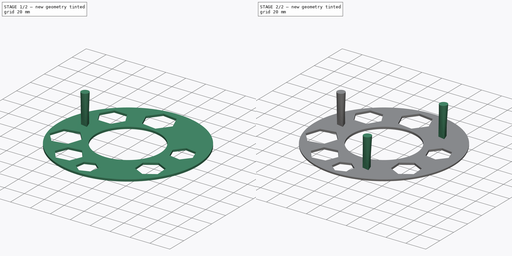
[diagram: build sequence overview — one tinted view per stage of 2, left to right]
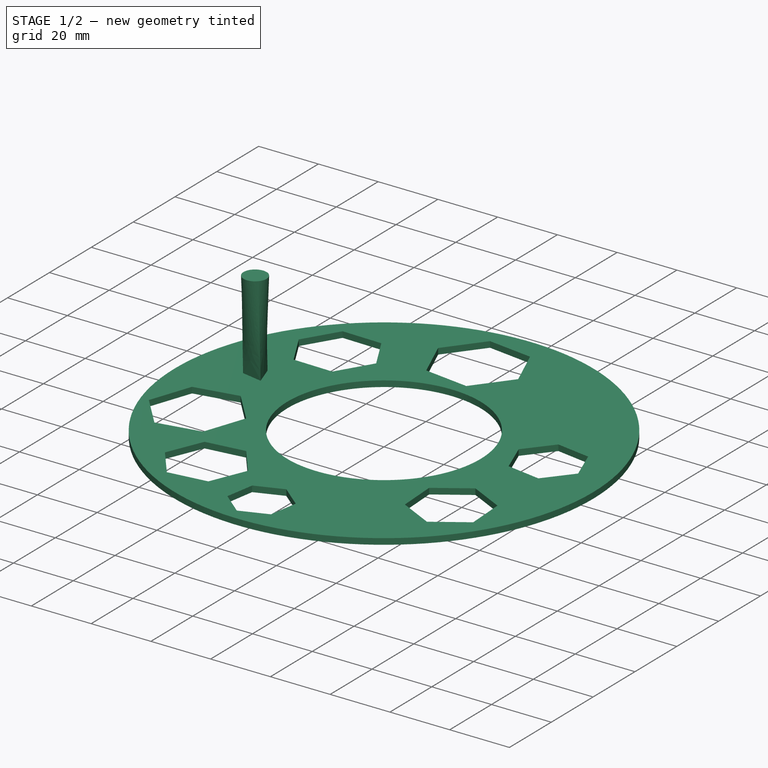
[diagram: stage 1 of 2 — iso view after this stage's code; geometry added in this stage tinted green]
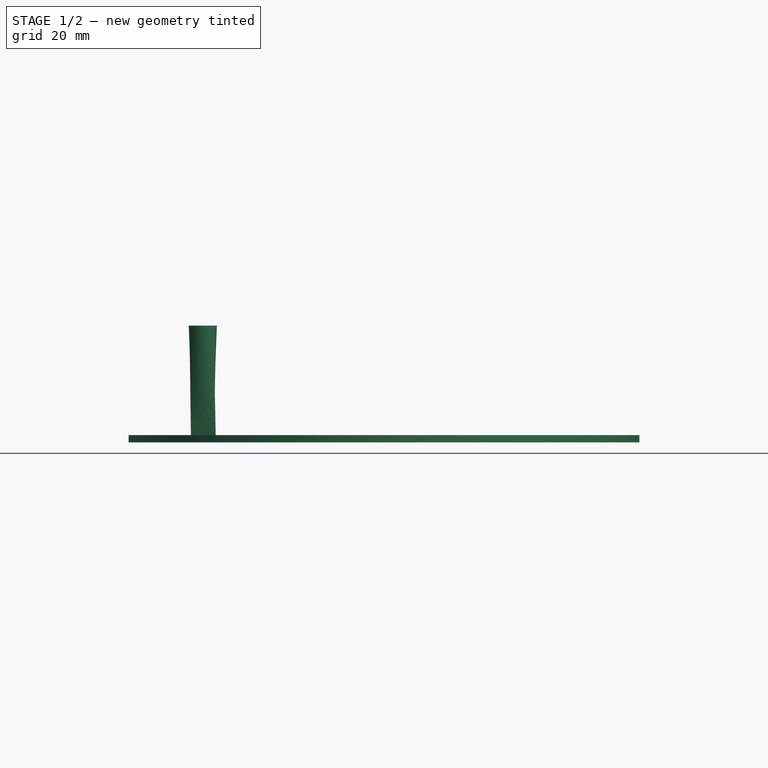
[diagram: stage 1 of 2 — front view after this stage's code; geometry added in this stage tinted green]
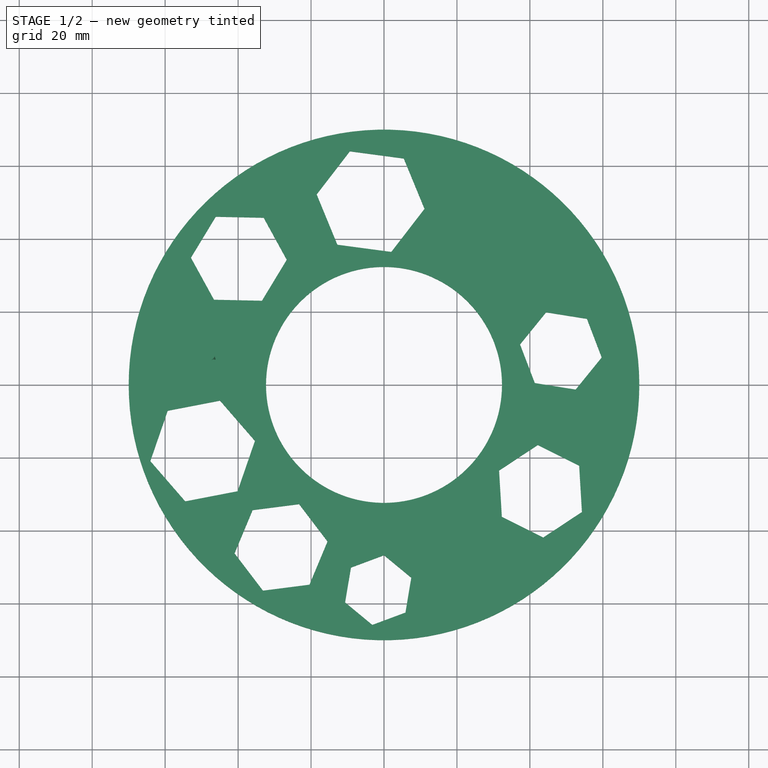
[diagram: stage 1 of 2 — top view after this stage's code; geometry added in this stage tinted green]
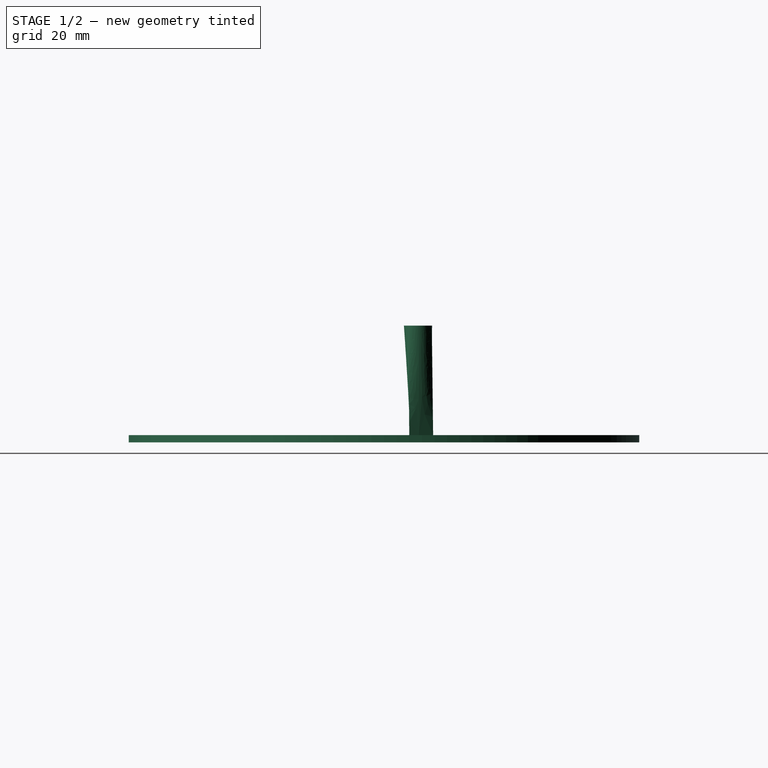
[diagram: stage 1 of 2 — right view after this stage's code; geometry added in this stage tinted green]
FCSTD DOCUMENT  (FreeCAD 1.0R39319 (Git))
Label: disk bracket
License: All rights reserved
LicenseURL: https://en.wikipedia.org/wiki/All_rights_reserved
objects: Sketcher::SketchObject×3, PartDesign::Pad×1, PartDesign::AdditiveLoft×1, PartDesign::PolarPattern×1, PartDesign::Fillet×1, PartDesign::Body×1
note: 18 computed .brp shape members not serialized (recipe doc carries the construction recipe); baked Part::Feature solids carry a one-line shape summary decoded from their .brp

FEATURE [Sketcher::SketchObject] Sketch001
  ArcFitTolerance = 1e-06
  AttachmentSupport = -> [XY_Plane001]
  FullyConstrained = false
  MakeInternals = false
  MapMode = 5
  sketch-geometry (56):
    g0: Circle CenterX=0 CenterY=0 CenterZ=0 NormalX=0 NormalY=0 NormalZ=1 AngleXU=0 Radius=70
    g1: LineSegment StartX=-33.4671 StartY=23.074 StartZ=0 EndX=-26.6542 EndY=34.3145 EndZ=0
    g2: LineSegment StartX=-26.6542 StartY=34.3145 StartZ=0 EndX=-32.9823 EndY=45.8348 EndZ=0
    g3: LineSegment StartX=-32.9823 StartY=45.8348 StartZ=0 EndX=-46.1232 EndY=46.1147 EndZ=0
    g4: LineSegment StartX=-46.1232 StartY=46.1147 StartZ=0 EndX=-52.9361 EndY=34.8743 EndZ=0
    g5: LineSegment StartX=-52.9361 StartY=34.8743 StartZ=0 EndX=-46.608 EndY=23.3539 EndZ=0
    g6: LineSegment StartX=-46.608 StartY=23.3539 StartZ=0 EndX=-33.4671 EndY=23.074 EndZ=0
    g7: Circle [constr] CenterX=-39.7951 CenterY=34.5944 CenterZ=0 NormalX=0 NormalY=0 NormalZ=1 AngleXU=0 Radius=13.1439
    g8: LineSegment StartX=2.00188 StartY=36.463 StartZ=0 EndX=11.1065 EndY=48.2771 EndZ=0
    g9: LineSegment StartX=11.1065 StartY=48.2771 StartZ=0 EndX=5.42749 EndY=62.0691 EndZ=0
    g10: LineSegment StartX=5.42749 StartY=62.0691 StartZ=0 EndX=-9.35619 EndY=64.0468 EndZ=0
    g11: LineSegment StartX=-9.35619 StartY=64.0468 StartZ=0 EndX=-18.4608 EndY=52.2327 EndZ=0
    g12: LineSegment StartX=-18.4608 StartY=52.2327 StartZ=0 EndX=-12.7818 EndY=38.4407 EndZ=0
    g13: LineSegment StartX=-12.7818 StartY=38.4407 StartZ=0 EndX=2.00188 EndY=36.463 EndZ=0
    g14: Circle [constr] CenterX=-3.67715 CenterY=50.2549 CenterZ=0 NormalX=0 NormalY=0 NormalZ=1 AngleXU=0 Radius=14.9154
    g15: LineSegment StartX=-20.4388 StartY=-54.7819 StartZ=0 EndX=-15.4803 EndY=-42.9258 EndZ=0
    g16: LineSegment StartX=-15.4803 StartY=-42.9258 StartZ=0 EndX=-23.2687 EndY=-32.7035 EndZ=0
    g17: LineSegment StartX=-23.2687 StartY=-32.7035 StartZ=0 EndX=-36.0156 EndY=-34.3373 EndZ=0
    g18: LineSegment StartX=-36.0156 StartY=-34.3373 StartZ=0 EndX=-40.9741 EndY=-46.1934 EndZ=0
    g19: LineSegment StartX=-40.9741 StartY=-46.1934 StartZ=0 EndX=-33.1858 EndY=-56.4157 EndZ=0
    g20: LineSegment StartX=-33.1858 StartY=-56.4157 StartZ=0 EndX=-20.4388 EndY=-54.7819 EndZ=0
    g21: Circle [constr] CenterX=-28.2272 CenterY=-44.5596 CenterZ=0 NormalX=0 NormalY=0 NormalZ=1 AngleXU=0 Radius=12.8512
    g22: LineSegment StartX=-40.1491 StartY=-29.1584 StartZ=0 EndX=-35.3803 EndY=-15.351 EndZ=0
    g23: LineSegment StartX=-35.3803 StartY=-15.351 StartZ=0 EndX=-44.9536 EndY=-4.31748 EndZ=0
    g24: LineSegment StartX=-44.9536 StartY=-4.31748 StartZ=0 EndX=-59.2955 EndY=-7.09137 EndZ=0
    g25: LineSegment StartX=-59.2955 StartY=-7.09137 StartZ=0 EndX=-64.0642 EndY=-20.8988 EndZ=0
    g26: LineSegment StartX=-64.0642 StartY=-20.8988 StartZ=0 EndX=-54.491 EndY=-31.9323 EndZ=0
    g27: LineSegment StartX=-54.491 StartY=-31.9323 StartZ=0 EndX=-40.1491 EndY=-29.1584 EndZ=0
    g28: Circle [constr] CenterX=-49.7223 CenterY=-18.1249 CenterZ=0 NormalX=0 NormalY=0 NormalZ=1 AngleXU=0 Radius=14.6077
    g29: LineSegment StartX=-9.05327 StartY=-50.0951 StartZ=0 EndX=-10.6611 EndY=-59.6419 EndZ=0
    g30: LineSegment StartX=-10.6611 StartY=-59.6419 StartZ=0 EndX=-3.19722 EndY=-65.8077 EndZ=0
    g31: LineSegment StartX=-3.19722 StartY=-65.8077 StartZ=0 EndX=5.87445 EndY=-62.4267 EndZ=0
    g32: LineSegment StartX=5.87445 StartY=-62.4267 StartZ=0 EndX=7.48227 EndY=-52.8799 EndZ=0
    g33: LineSegment StartX=7.48227 StartY=-52.8799 StartZ=0 EndX=0.0184068 EndY=-46.7141 EndZ=0
    g34: LineSegment StartX=0.0184068 StartY=-46.7141 StartZ=0 EndX=-9.05327 EndY=-50.0951 EndZ=0
    g35: Circle [constr] CenterX=-1.58941 CenterY=-56.2609 CenterZ=0 NormalX=0 NormalY=0 NormalZ=1 AngleXU=0 Radius=9.68124
    g36: LineSegment StartX=31.5501 StartY=-23.4914 StartZ=0 EndX=32.311 EndY=-36.1673 EndZ=0
    g37: LineSegment StartX=32.311 StartY=-36.1673 StartZ=0 EndX=43.669 EndY=-41.8463 EndZ=0
    g38: LineSegment StartX=43.669 StartY=-41.8463 StartZ=0 EndX=54.2662 EndY=-34.8495 EndZ=0
    g39: LineSegment StartX=54.2662 StartY=-34.8495 StartZ=0 EndX=53.5054 EndY=-22.1736 EndZ=0
    g40: LineSegment StartX=53.5054 StartY=-22.1736 StartZ=0 EndX=42.1474 EndY=-16.4946 EndZ=0
    g41: LineSegment StartX=42.1474 StartY=-16.4946 StartZ=0 EndX=31.5501 EndY=-23.4914 EndZ=0
    g42: Circle [constr] CenterX=42.9082 CenterY=-29.1705 CenterZ=0 NormalX=0 NormalY=0 NormalZ=1 AngleXU=0 Radius=12.6987
    g43: LineSegment StartX=37.297 StartY=11.0951 StartZ=0 EndX=41.3492 EndY=0.506791 EndZ=0
    g44: LineSegment StartX=41.3492 StartY=0.506791 StartZ=0 EndX=52.545 EndY=-1.27805 EndZ=0
    g45: LineSegment StartX=52.545 StartY=-1.27805 StartZ=0 EndX=59.6887 EndY=7.52538 EndZ=0
    g46: LineSegment StartX=59.6887 StartY=7.52538 StartZ=0 EndX=55.6365 EndY=18.1137 EndZ=0
    g47: LineSegment StartX=55.6365 StartY=18.1137 StartZ=0 EndX=44.4407 EndY=19.8985 EndZ=0
    g48: LineSegment StartX=44.4407 StartY=19.8985 StartZ=0 EndX=37.297 EndY=11.0951 EndZ=0
    g49: Circle [constr] CenterX=48.4929 CenterY=9.31022 CenterZ=0 NormalX=0 NormalY=0 NormalZ=1 AngleXU=0 Radius=11.3372
    g50: LineSegment [constr] StartX=19.5178 StartY=-49.2782 StartZ=0 EndX=32.9172 EndY=41.542 EndZ=0
    g51: LineSegment [constr] StartX=32.9172 StartY=41.542 StartZ=0 EndX=-52.4351 EndY=7.73614 EndZ=0
    g52: LineSegment [constr] StartX=-52.4351 StartY=7.73614 StartZ=0 EndX=19.5178 EndY=-49.2782 EndZ=0
    g53: Circle [constr] CenterX=0 CenterY=0 CenterZ=0 NormalX=0 NormalY=0 NormalZ=1 AngleXU=0 Radius=53.0027
    g54: Circle [constr] CenterX=0 CenterY=0 CenterZ=0 NormalX=0 NormalY=0 NormalZ=1 AngleXU=0 Radius=32.3479
    g55: Circle CenterX=0 CenterY=0 CenterZ=0 NormalX=0 NormalY=0 NormalZ=1 AngleXU=0 Radius=32.3479
  constraints (104):
    c: Diameter(g0) = 140
    c: Coincident(g0,g-1)
    c: Coincident(g1,g2)
    c: Coincident(g2,g3)
    c: Coincident(g3,g4)
    c: Coincident(g4,g5)
    c: Coincident(g5,g6)
    c: Coincident(g6,g1)
    c: Equal(g1, g2-g6) x5
    c: PointOnObject(g1,g7)
    c: PointOnObject(g2,g7)
    c: PointOnObject(g3,g7)
    c: PointOnObject(g4,g7)
    c: PointOnObject(g5,g7)
    c: PointOnObject(g6,g7)
    c: Coincident(g8,g9)
    c: Coincident(g9,g10)
    c: Coincident(g10,g11)
    c: Coincident(g11,g12)
    c: Coincident(g12,g13)
    c: Coincident(g13,g8)
    c: Equal(g8, g9-g13) x5
    c: PointOnObject(g8,g14)
    c: PointOnObject(g9,g14)
    c: PointOnObject(g10,g14)
    c: PointOnObject(g11,g14)
    c: PointOnObject(g12,g14)
    c: PointOnObject(g13,g14)
    c: Coincident(g15,g16)
    c: Coincident(g16,g17)
    c: Coincident(g17,g18)
    c: Coincident(g18,g19)
    c: Coincident(g19,g20)
    c: Coincident(g20,g15)
    c: Equal(g15, g16-g20) x5
    c: PointOnObject(g15,g21)
    c: PointOnObject(g16,g21)
    c: PointOnObject(g17,g21)
    c: PointOnObject(g18,g21)
    c: PointOnObject(g19,g21)
    c: PointOnObject(g20,g21)
    c: Coincident(g22,g23)
    c: Coincident(g23,g24)
    c: Coincident(g24,g25)
    c: Coincident(g25,g26)
    c: Coincident(g26,g27)
    c: Coincident(g27,g22)
    c: Equal(g22, g23-g27) x5
    c: PointOnObject(g22,g28)
    c: PointOnObject(g23,g28)
    c: PointOnObject(g24,g28)
    c: PointOnObject(g25,g28)
    c: PointOnObject(g26,g28)
    c: PointOnObject(g27,g28)
    c: Coincident(g29,g30)
    c: Coincident(g30,g31)
    c: Coincident(g31,g32)
    c: Coincident(g32,g33)
    c: Coincident(g33,g34)
    c: Coincident(g34,g29)
    c: Equal(g29, g30-g34) x5
    c: PointOnObject(g29,g35)
    c: PointOnObject(g30,g35)
    c: PointOnObject(g31,g35)
    c: PointOnObject(g32,g35)
    c: PointOnObject(g33,g35)
    c: PointOnObject(g34,g35)
    c: Coincident(g36,g37)
    c: Coincident(g37,g38)
    c: Coincident(g38,g39)
    c: Coincident(g39,g40)
    c: Coincident(g40,g41)
    c: Coincident(g41,g36)
    c: Equal(g36, g37-g41) x5
    c: PointOnObject(g36,g42)
    c: PointOnObject(g37,g42)
    c: PointOnObject(g38,g42)
    c: PointOnObject(g39,g42)
    c: PointOnObject(g40,g42)
    c: PointOnObject(g41,g42)
    c: Coincident(g43,g44)
    c: Coincident(g44,g45)
    c: Coincident(g45,g46)
    c: Coincident(g46,g47)
    c: Coincident(g47,g48)
    c: Coincident(g48,g43)
    c: Equal(g43, g44-g48) x5
    c: PointOnObject(g43,g49)
    c: PointOnObject(g44,g49)
    c: PointOnObject(g45,g49)
    c: PointOnObject(g46,g49)
    c: PointOnObject(g47,g49)
    c: PointOnObject(g48,g49)
    c: Coincident(g50,g51)
    c: Coincident(g51,g52)
    c: Coincident(g52,g50)
    c: Equal(g50,g51)
    c: Equal(g50,g52)
    c: PointOnObject(g50,g53)
    c: PointOnObject(g51,g53)
    c: PointOnObject(g52,g53)
    c: Coincident(g53,g0)
    c: Coincident(g54,g0)
    c: Coincident(g55,g0)
FEATURE [PartDesign::Pad] Pad
  Direction = (0,0,1)
  Length = 2
  Length2 = 10
  Profile = -> Sketch001
  ReferenceAxis = -> Sketch001 [N_Axis]
  Refine = true
  Suppressed = false
  Type = 0
FEATURE [Sketcher::SketchObject] Sketch002
  ArcFitTolerance = 1e-06
  AttachmentOffset = pos=(0,0,2) rot=(0,0,1;0rad)
  AttachmentSupport = -> [XY_Plane001]
  FullyConstrained = false
  MakeInternals = false
  MapMode = 5
  Placement = pos=(0,0,2) rot=(0,0,1;0rad)
  sketch-geometry (10):
    g0: LineSegment [constr] StartX=16.3191 StartY=-47.3434 StartZ=0 EndX=32.8411 EndY=37.8045 EndZ=0
    g1: LineSegment [constr] StartX=32.8411 StartY=37.8045 StartZ=0 EndX=-49.1601 EndY=9.53896 EndZ=0
    g2: LineSegment [constr] StartX=-49.1601 StartY=9.53896 StartZ=0 EndX=16.3191 EndY=-47.3434 EndZ=0
    g3: Circle [constr] CenterX=0 CenterY=0 CenterZ=0 NormalX=0 NormalY=0 NormalZ=1 AngleXU=0 Radius=50.0771
    g4: LineSegment StartX=-46.1404 StartY=6.91572 StartZ=0 EndX=-48.3982 EndY=13.4657 EndZ=0
    g5: LineSegment StartX=-48.3982 StartY=13.4657 StartZ=0 EndX=-52.9418 EndY=8.23544 EndZ=0
    g6: LineSegment StartX=-52.9418 StartY=8.23544 StartZ=0 EndX=-46.1404 EndY=6.91572 EndZ=0
    g7: Circle [constr] CenterX=-49.1601 CenterY=9.53896 CenterZ=0 NormalX=0 NormalY=0 NormalZ=1 AngleXU=0 Radius=4
    g8: Circle [constr] CenterX=32.8411 CenterY=37.8045 CenterZ=0 NormalX=0 NormalY=0 NormalZ=1 AngleXU=0 Radius=4
    g9: Circle [constr] CenterX=16.3191 CenterY=-47.3434 CenterZ=0 NormalX=0 NormalY=0 NormalZ=1 AngleXU=0 Radius=4
  constraints (24):
    c: Coincident(g0,g1)
    c: Coincident(g1,g2)
    c: Coincident(g2,g0)
    c: Equal(g0,g1)
    c: Equal(g0,g2)
    c: PointOnObject(g0,g3)
    c: PointOnObject(g1,g3)
    c: PointOnObject(g2,g3)
    c: Coincident(g3,g-1)
    c: Coincident(g4,g5)
    c: Coincident(g5,g6)
    c: Coincident(g6,g4)
    c: Equal(g4,g5)
    c: Equal(g4,g6)
    c: PointOnObject(g4,g7)
    c: PointOnObject(g5,g7)
    c: PointOnObject(g6,g7)
    c: Radius(g7) = 4
    c: Coincident(g7,g1)
    c: PointOnObject(g6,g2)
    c: Radius(g8) = 4
    c: Coincident(g8,g0)
    c: Radius(g9) = 4
    c: Coincident(g9,g0)
FEATURE [Sketcher::SketchObject] Sketch003
  ArcFitTolerance = 1e-06
  AttachmentOffset = pos=(0,0,32) rot=(0,0,1;0rad)
  AttachmentSupport = -> [XY_Plane001]
  FullyConstrained = false
  MakeInternals = false
  MapMode = 5
  Placement = pos=(0,0,32) rot=(0,0,1;0rad)
  sketch-geometry (5):
    g0: LineSegment [constr] StartX=16.7678 StartY=-47.6865 StartZ=0 EndX=32.9138 EndY=38.3646 EndZ=0
    g1: LineSegment [constr] StartX=32.9138 StartY=38.3646 StartZ=0 EndX=-49.6816 EndY=9.3219 EndZ=0
    g2: LineSegment [constr] StartX=-49.6816 StartY=9.3219 StartZ=0 EndX=16.7678 EndY=-47.6865 EndZ=0
    g3: Circle [constr] CenterX=0 CenterY=0 CenterZ=0 NormalX=0 NormalY=0 NormalZ=1 AngleXU=0 Radius=50.5486
    g4: Circle CenterX=-49.6816 CenterY=9.3219 CenterZ=0 NormalX=0 NormalY=0 NormalZ=1 AngleXU=0 Radius=3.85943
  constraints (10):
    c: Coincident(g0,g1)
    c: Coincident(g1,g2)
    c: Coincident(g2,g0)
    c: Equal(g0,g1)
    c: Equal(g0,g2)
    c: PointOnObject(g0,g3)
    c: PointOnObject(g1,g3)
    c: PointOnObject(g2,g3)
    c: Coincident(g3,g-1)
    c: Coincident(g4,g1)
FEATURE [PartDesign::AdditiveLoft] AdditiveLoft
  BaseFeature = -> Pad
  Closed = false
  Profile = -> Sketch002
  Refine = true
  Ruled = false
  Sections = -> [Sketch003]
  Suppressed = false
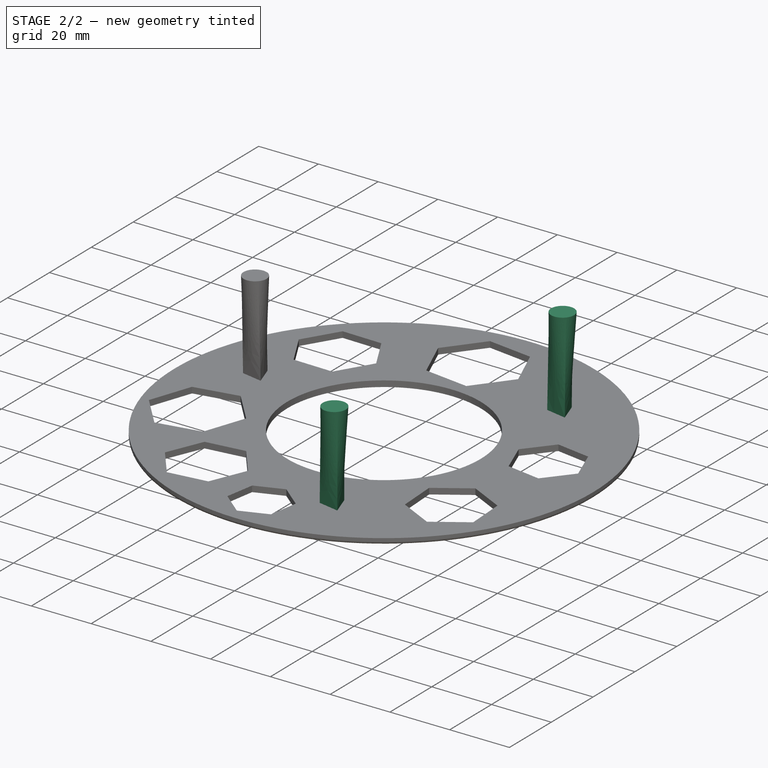
[diagram: stage 2 of 2 — iso view after this stage's code; geometry added in this stage tinted green]
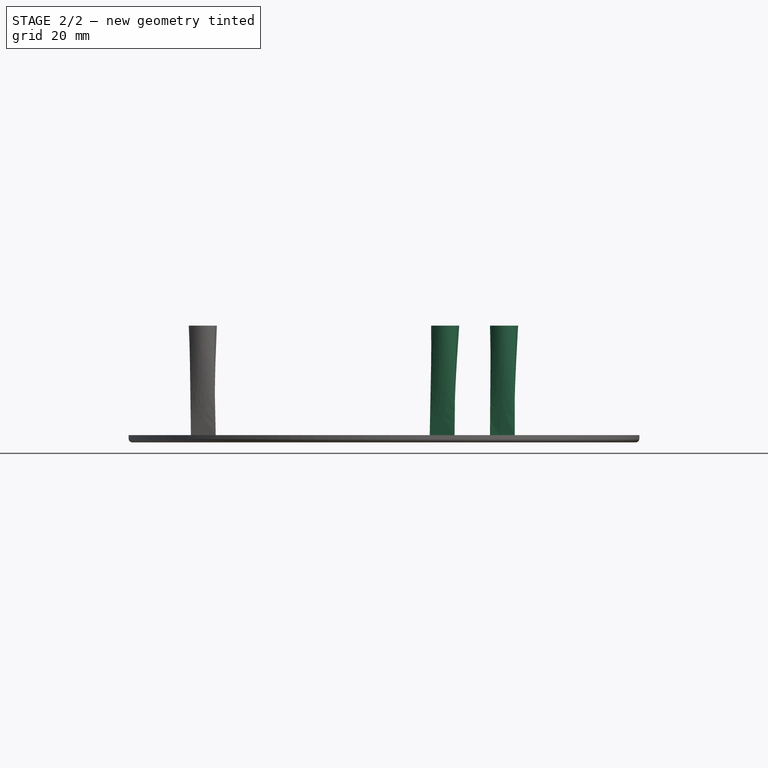
[diagram: stage 2 of 2 — front view after this stage's code; geometry added in this stage tinted green]
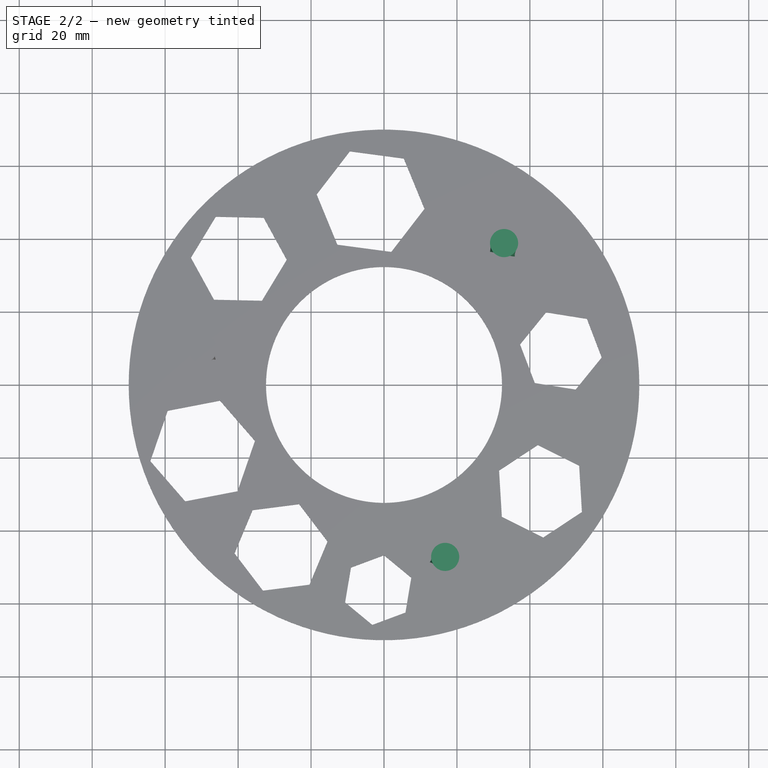
[diagram: stage 2 of 2 — top view after this stage's code; geometry added in this stage tinted green]
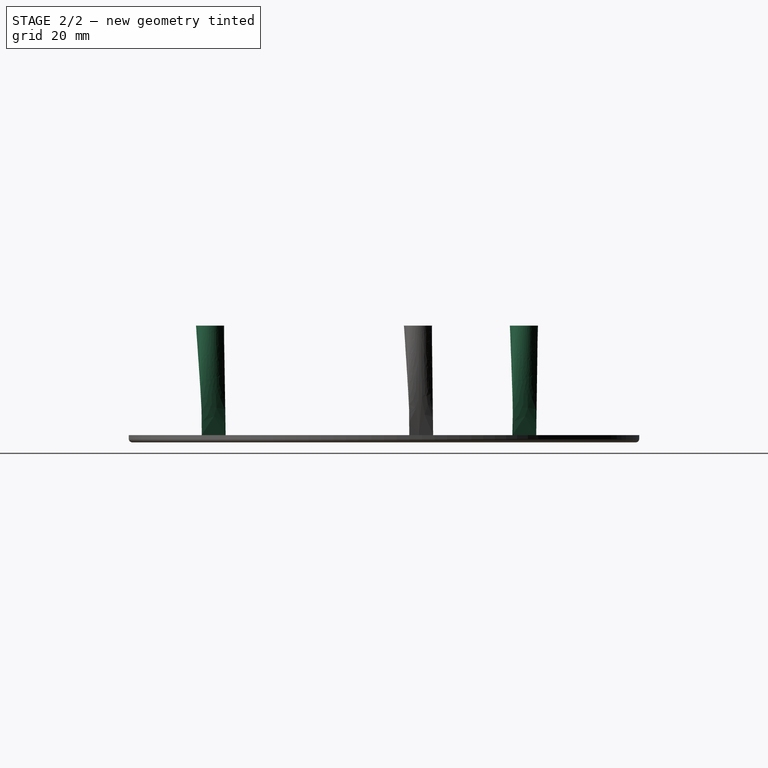
[diagram: stage 2 of 2 — right view after this stage's code; geometry added in this stage tinted green]
FEATURE [PartDesign::PolarPattern] PolarPattern
  Angle = 360
  Axis = -> Sketch002 [N_Axis]
  BaseFeature = -> AdditiveLoft
  Mode = 0
  Occurrences = 3
  Offset = 120
  Originals = -> [AdditiveLoft]
  Refine = true
  Suppressed = false
  TransformMode = 0
FEATURE [PartDesign::Fillet] Fillet
  Base = -> PolarPattern [Edge2]
  BaseFeature = -> PolarPattern
  Radius = 1
  Refine = true
  SupportTransform = false
  Suppressed = false
  UseAllEdges = false
FEATURE [PartDesign::Body] Body001
  AllowCompound = false
  Group = -> [Sketch001,Pad,Sketch002,Sketch003,AdditiveLoft,PolarPattern,Fillet]
  Origin = -> Origin001
  Tip = -> Fillet
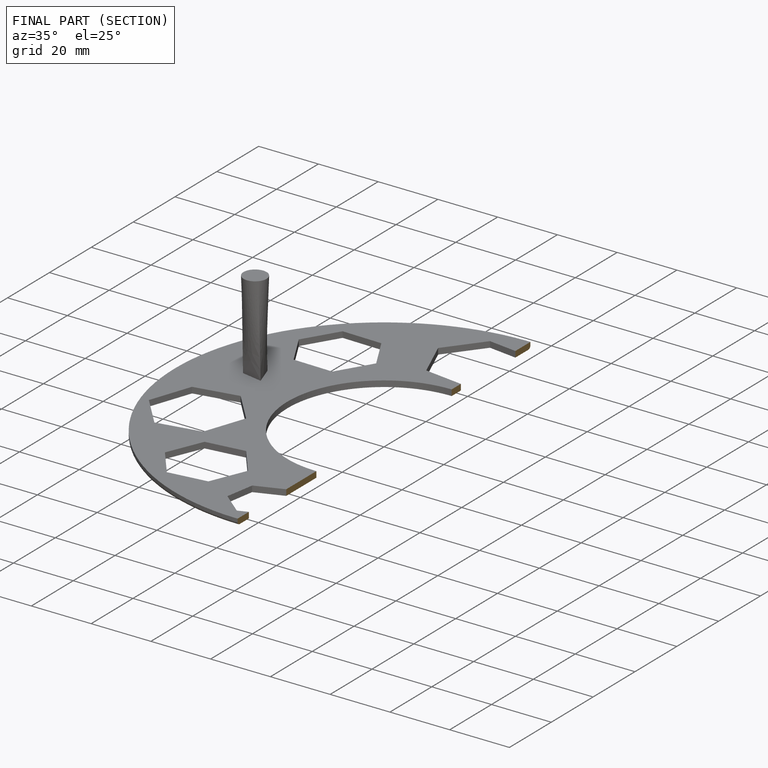
[diagram: finished part — half-section view (interior)]
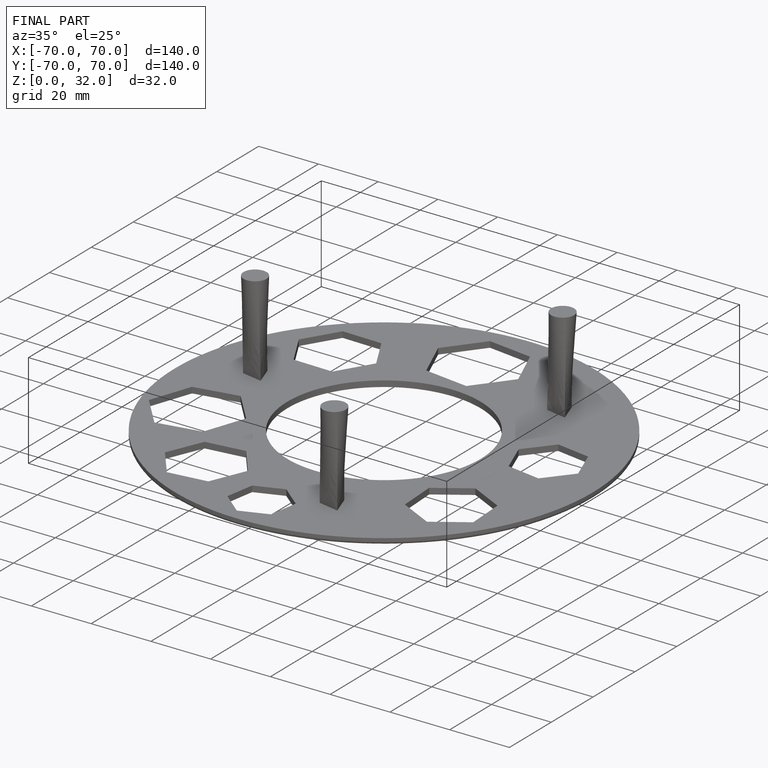
[diagram: finished part — iso view with bounding-box wireframe]
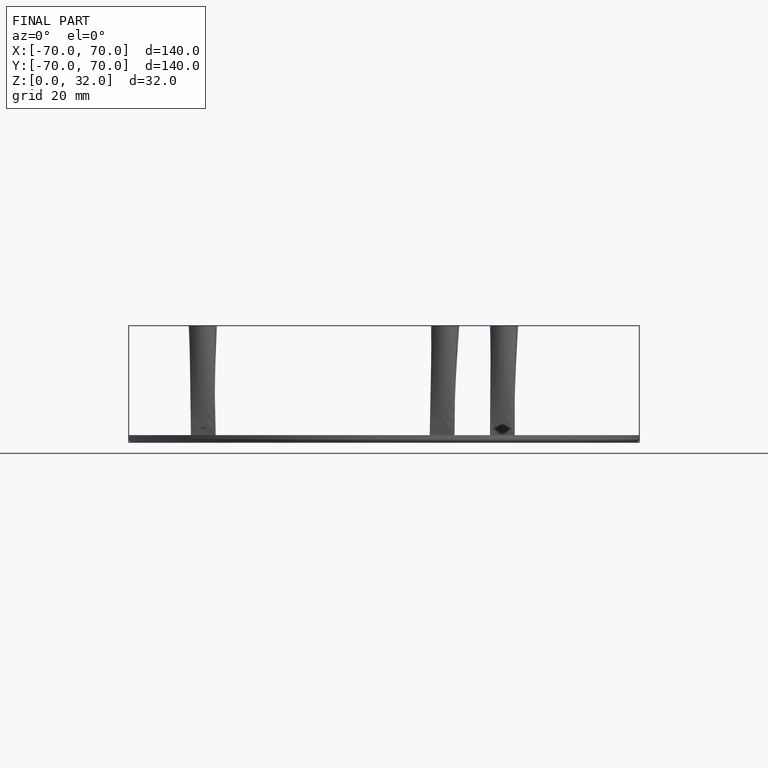
[diagram: finished part — front view with bounding-box wireframe]
